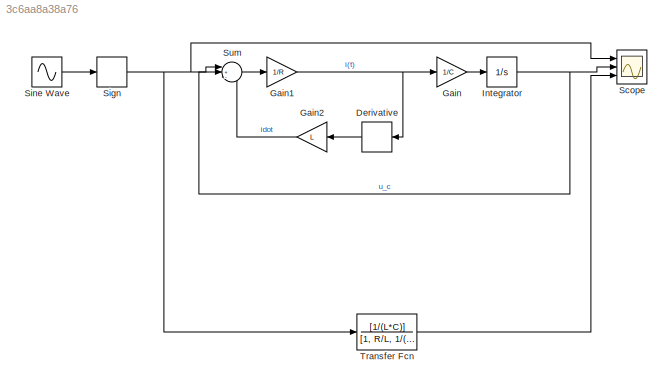
MODEL slx_3c6aa8a38a76
KIND model
CONFIG AbsTol = auto
CONFIG EnableMultiTasking = off
CONFIG FixedStep = auto
CONFIG MaxStep = auto
CONFIG MinStep = auto
CONFIG RelTol = 1e-3
CONFIG SampleTimeConstraint = Unconstrained
CONFIG Solver = VariableStepAuto
CONFIG SolverName = VariableStepAuto
CONFIG StartTime = 0.0
CONFIG StopTime = 0.01
WORKSPACE source: MATLAB code (in-file)
WORKSPACE C = 0.22e-6  (= 2.2e-07)
WORKSPACE R = 180
WORKSPACE L = 50e-3  (= 0.05)
BLOCK [Derivative] Derivative
  CoefficientInTFapproximation = 0.01
BLOCK [Gain] Gain
  Gain = 1/C
  OutDataTypeStr = Inherit: Inherit via internal rule
  ParamDataTypeStr = Inherit: Inherit via internal rule
  SaturateOnIntegerOverflow = off
BLOCK [Gain] Gain1
  Gain = 1/R
  OutDataTypeStr = Inherit: Inherit via internal rule
  ParamDataTypeStr = Inherit: Inherit via internal rule
  SaturateOnIntegerOverflow = off
BLOCK [Gain] Gain2
  Gain = L
  OutDataTypeStr = Inherit: Inherit via internal rule
  ParamDataTypeStr = Inherit: Inherit via internal rule
  SaturateOnIntegerOverflow = off
BLOCK [Integrator] Integrator
  Ports = [1, 1]
BLOCK [Scope] Scope
  Floating = off
  NumInputPorts = 3
  Ports = [3]
  ScopeSpecificationString = Simulink.scopes.TimeScopeBlockCfg('CurrentConfiguration', extmgr.ConfigurationSet(extmgr.Configuration('Core','General UI',true),extmgr.Configuration('Core','Source UI',true),extmgr.Configuration('Sources','WiredSimulink',true),extmgr.Configuration('Visuals','Time Domain',true,'SerializedDisplays',{struct('MinYLimReal','-2.27529','MaxYLimReal','2.07157','YLabelReal','','MinYLimMag','0.00000','MaxY...<+1414ch>
BLOCK [Signum] Sign
BLOCK [Sin] Sine Wave
  Frequency = 2*pi*200
  Ports = [0, 1]
  SampleTime = 0
BLOCK [Sum] Sum
  IconShape = round
  InputSameDT = off
  Inputs = |+--
  OutDataTypeStr = Inherit: Inherit via internal rule
  Ports = [3, 1]
  SaturateOnIntegerOverflow = off
BLOCK [TransferFcn] Transfer Fcn
  Denominator = [1,  R/L, 1/(L*C) ]
  Numerator = [1/(L*C)]
LINE Derivative:1 -> Gain2:1
NET Gain1:1 -> Derivative:1, Gain:1
LINE Gain2:1 -> Sum:3
LINE Gain:1 -> Integrator:1
NET Integrator:1 -> Scope:2, Sum:2
NET Sign:1 -> Scope:1, Sum:1, Transfer Fcn:1
LINE Sine Wave:1 -> Sign:1
LINE Sum:1 -> Gain1:1
LINE Transfer Fcn:1 -> Scope:3
note: NET lines group one-source signal fan-out (src -> all destinations, sorted); 1:1 wires keep LINE
